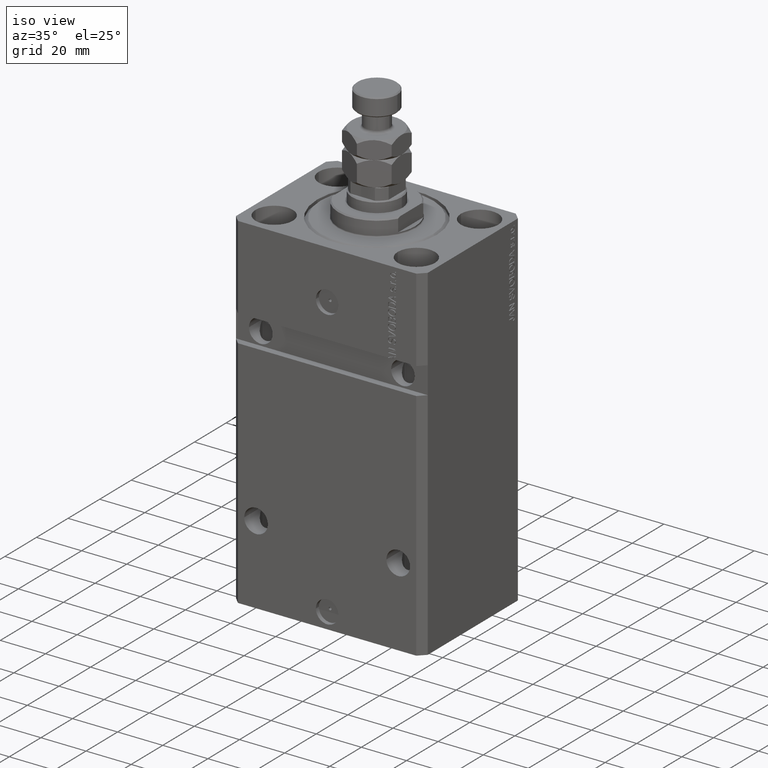
[diagram: clean part render]
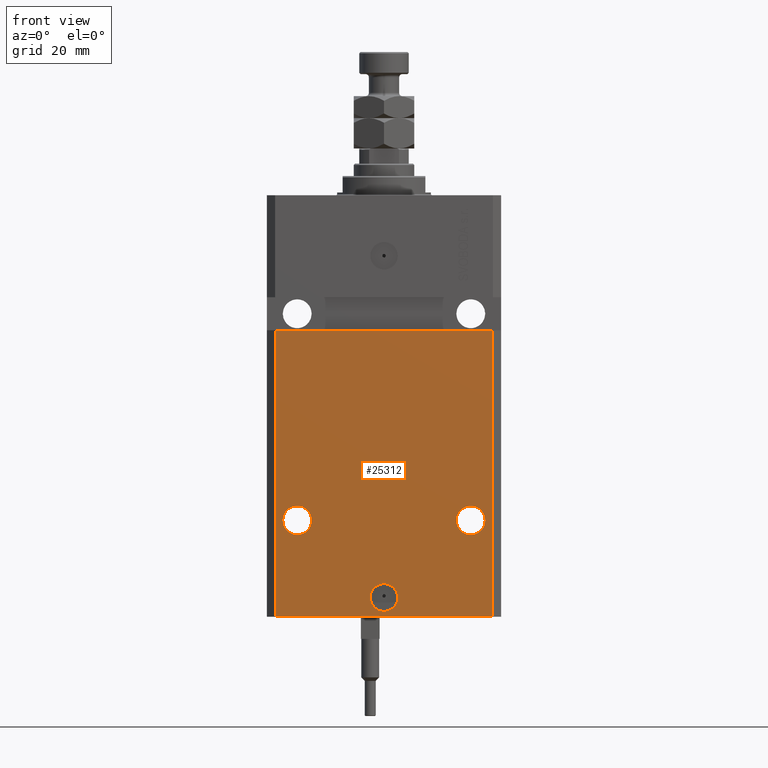
[diagram: tour spotlight — one face highlighted and labeled with its STEP entity id]
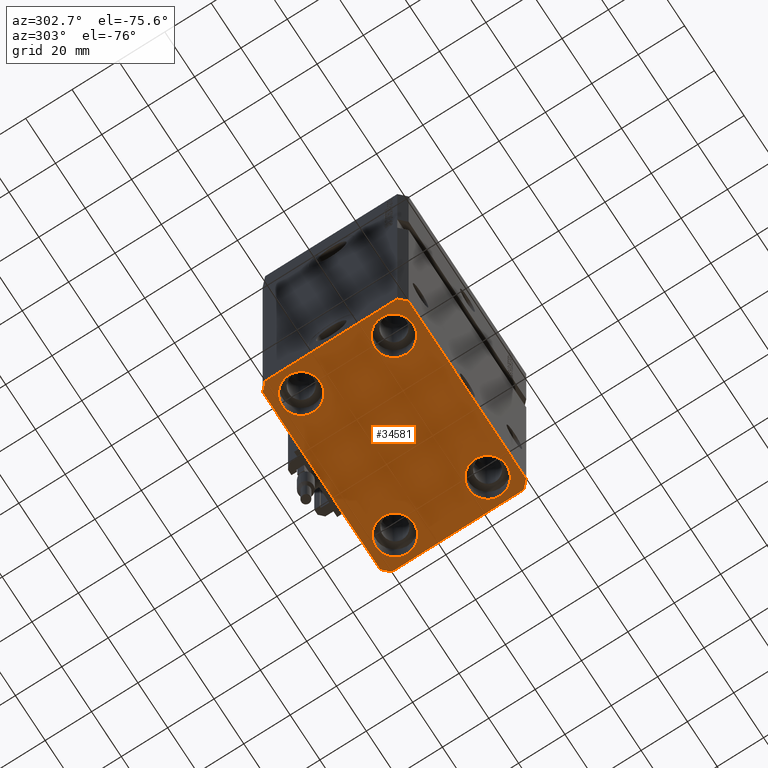
[diagram: tour spotlight — one face highlighted and labeled with its STEP entity id]
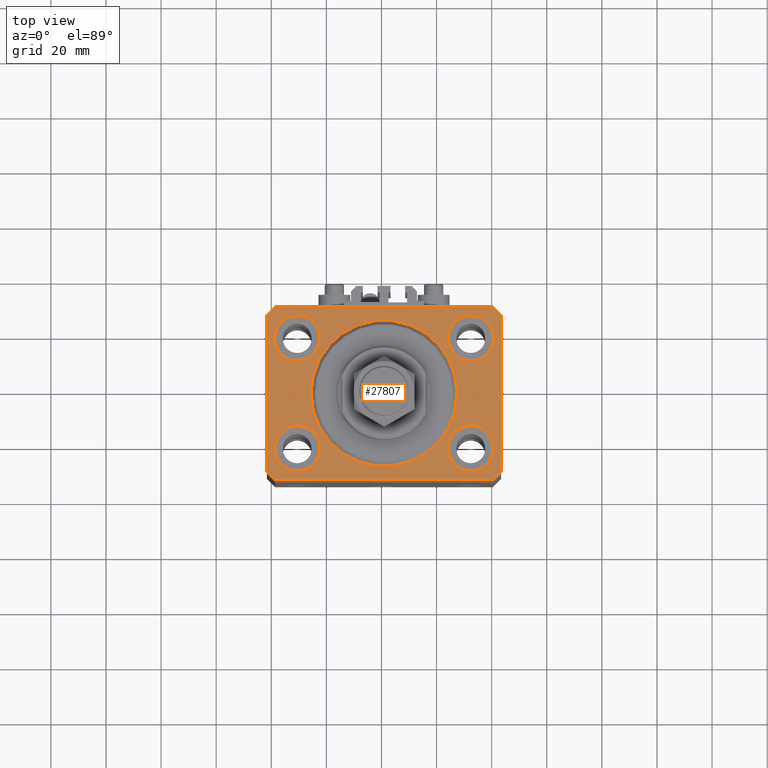
[diagram: tour spotlight — one face highlighted and labeled with its STEP entity id]
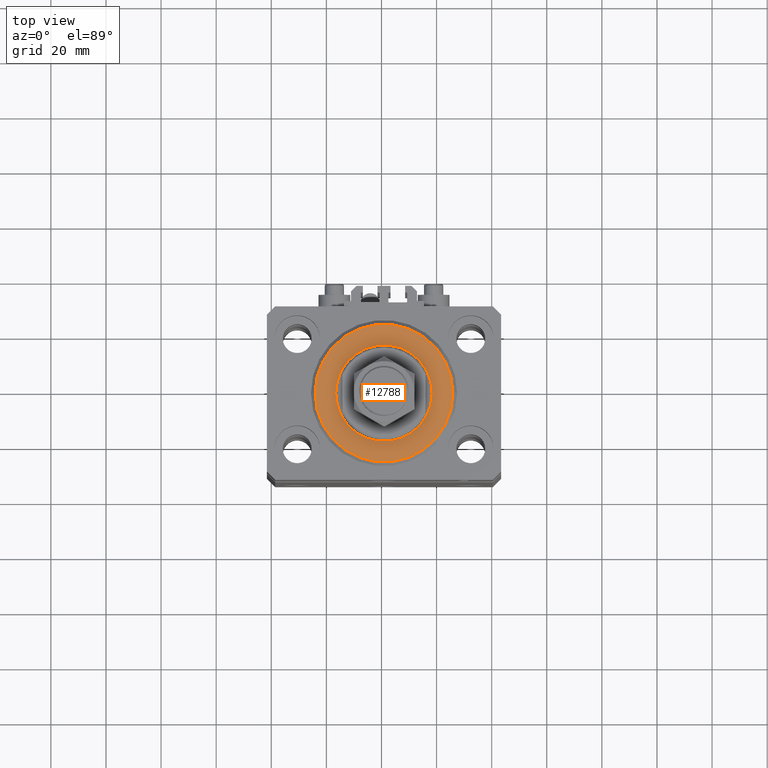
[diagram: tour spotlight — one face highlighted and labeled with its STEP entity id]
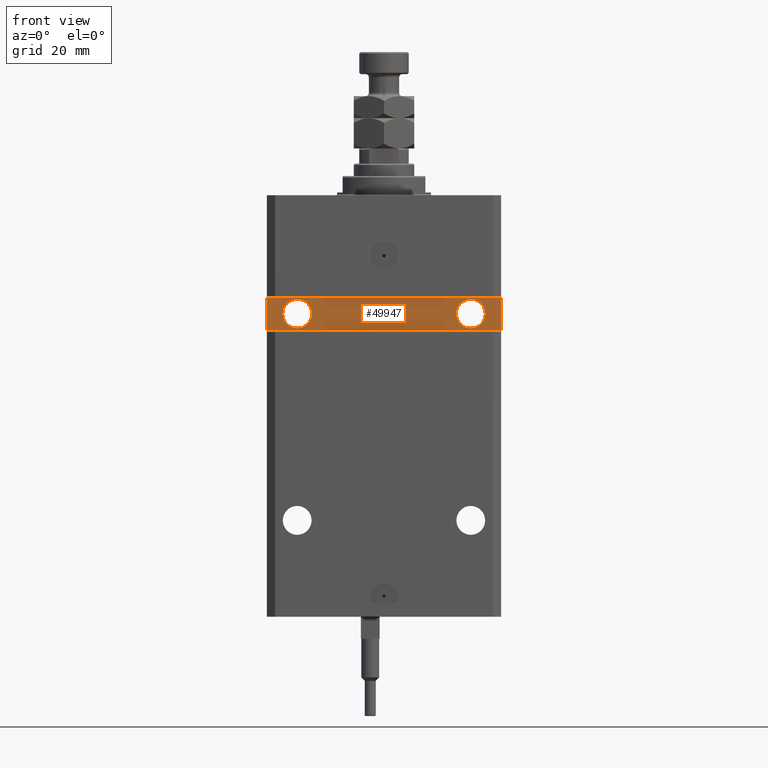
[diagram: tour spotlight — one face highlighted and labeled with its STEP entity id]
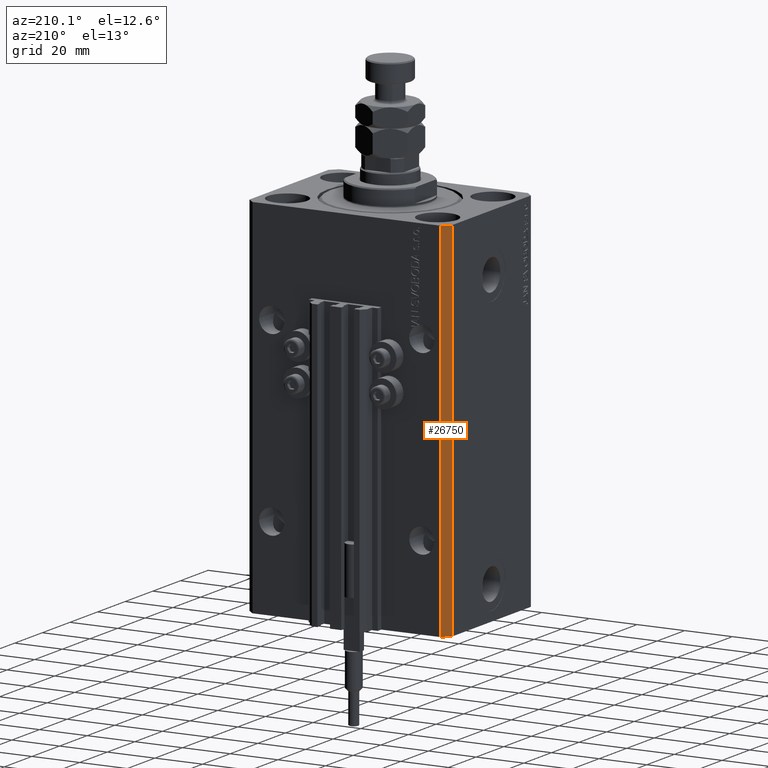
[diagram: tour spotlight — one face highlighted and labeled with its STEP entity id]
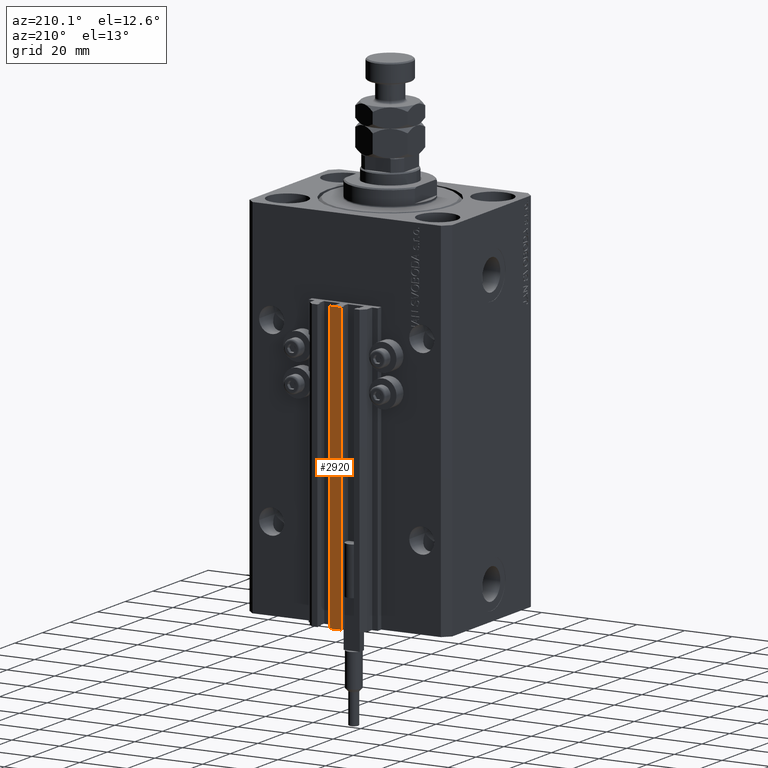
[diagram: tour spotlight — one face highlighted and labeled with its STEP entity id]
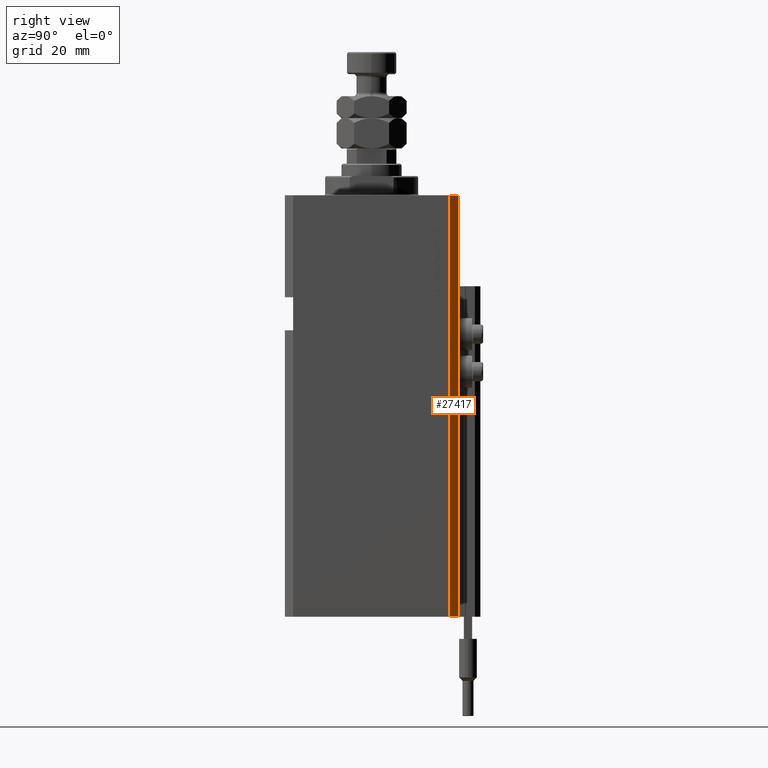
[diagram: tour spotlight — one face highlighted and labeled with its STEP entity id]
A machine part: a face-by-face anatomy tour. The part has 1185 B-rep faces; the first image is the clean iso view, then the 8 largest visible faces are spotlighted one at a time (largest first), each with its STEP entity span.

Face 1 — front view, entity #25312. In plain terms, the highlighted planar face has unit normal (0, -1, 0).
Definition (entity closure, byte-faithful):
#668 = CARTESIAN_POINT ( 'NONE',  ( -39.50000000000000711, -31.50000000000000000, -153.0000000000000000 ) ) ;
#1365 = VERTEX_POINT ( 'NONE', #6952 ) ;
#1867 = CARTESIAN_POINT ( 'NONE',  ( -31.50000000000001421, -31.50000000000000711, -118.0000000000000000 ) ) ;
#2254 = VERTEX_POINT ( 'NONE', #41985 ) ;
#2482 = VERTEX_POINT ( 'NONE', #25350 ) ;
#2498 = ORIENTED_EDGE ( 'NONE', *, *, #46011, .T. ) ;
#3465 = DIRECTION ( 'NONE',  ( 1.176083712526788232E-16, -1.000000000000000000, 0.000000000000000000 ) ) ;
#4275 = LINE ( 'NONE', #11196, #21199 ) ;
#4799 = VECTOR ( 'NONE', #33791, 1000.000000000000000 ) ;
#5234 = EDGE_CURVE ( 'NONE', #25906, #1365, #20740, .T. ) ;
#5345 = EDGE_LOOP ( 'NONE', ( #44148, #11095 ) ) ;
#5417 = AXIS2_PLACEMENT_3D ( 'NONE', #668, #16762, #32360 ) ;
#6046 = EDGE_CURVE ( 'NONE', #1365, #25906, #37946, .T. ) ;
#6206 = CIRCLE ( 'NONE', #12684, 5.249999999999997335 ) ;
#6952 = CARTESIAN_POINT ( 'NONE',  ( 5.000000000000006217, -31.50000000000000000, -146.0000000000000000 ) ) ;
#7233 = DIRECTION ( 'NONE',  ( 1.000000000000000000, 0.000000000000000000, 0.000000000000000000 ) ) ;
#8383 = EDGE_CURVE ( 'NONE', #29437, #22184, #6206, .T. ) ;
#8649 = EDGE_LOOP ( 'NONE', ( #44379, #26628, #35459, #2498 ) ) ;
#9544 = CARTESIAN_POINT ( 'NONE',  ( -39.50000000000000711, -31.50000000000000000, -153.0000000000000000 ) ) ;
#10800 = DIRECTION ( 'NONE',  ( 1.176083712526788232E-16, -1.000000000000000000, 0.000000000000000000 ) ) ;
#11095 = ORIENTED_EDGE ( 'NONE', *, *, #46535, .F. ) ;
#11196 = CARTESIAN_POINT ( 'NONE',  ( -39.50000000000000711, -31.50000000000000000, -153.0000000000000000 ) ) ;
#11695 = DIRECTION ( 'NONE',  ( 1.000000000000000000, 0.000000000000000000, 0.000000000000000000 ) ) ;
#12431 = DIRECTION ( 'NONE',  ( 1.176083712526788232E-16, -1.000000000000000000, 0.000000000000000000 ) ) ;
#12684 = AXIS2_PLACEMENT_3D ( 'NONE', #44118, #12431, #35180 ) ;
#12735 = EDGE_LOOP ( 'NONE', ( #46409, #36702 ) ) ;
#13007 = CIRCLE ( 'NONE', #26877, 5.249999999999997335 ) ;
#14894 = DIRECTION ( 'NONE',  ( 1.176083712526788232E-16, -1.000000000000000000, 0.000000000000000000 ) ) ;
#16263 = PLANE ( 'NONE',  #5417 ) ;
#16762 = DIRECTION ( 'NONE',  ( 0.000000000000000000, -1.000000000000000000, 0.000000000000000000 ) ) ;
#17085 = VERTEX_POINT ( 'NONE', #22143 ) ;
#17168 = DIRECTION ( 'NONE',  ( 1.176083712526788232E-16, -1.000000000000000000, 0.000000000000000000 ) ) ;
#19046 = DIRECTION ( 'NONE',  ( 1.000000000000000000, 0.000000000000000000, 0.000000000000000000 ) ) ;
#19944 = VERTEX_POINT ( 'NONE', #48360 ) ;
#20589 = FACE_BOUND ( 'NONE', #12735, .T. ) ;
#20740 = CIRCLE ( 'NONE', #37077, 5.000000000000006217 ) ;
#21199 = VECTOR ( 'NONE', #11695, 1000.000000000000000 ) ;
#21948 = CIRCLE ( 'NONE', #48063, 5.249999999999997335 ) ;
#22036 = CARTESIAN_POINT ( 'NONE',  ( 39.50000000000000711, -31.50000000000000000, -153.0000000000000000 ) ) ;
#22143 = CARTESIAN_POINT ( 'NONE',  ( -39.50000000000000000, -31.50000000000000711, -48.99999999999999289 ) ) ;
#22148 = ORIENTED_EDGE ( 'NONE', *, *, #31938, .F. ) ;
#22184 = VERTEX_POINT ( 'NONE', #25383 ) ;
#24660 = CARTESIAN_POINT ( 'NONE',  ( -26.25000000000001776, -31.50000000000000711, -118.0000000000000000 ) ) ;
#25312 = ADVANCED_FACE ( 'NONE', ( #20589, #36198, #48215, #40283 ), #16263, .T. ) ;
#25350 = CARTESIAN_POINT ( 'NONE',  ( 36.75000000000001421, -31.49999999999999289, -118.0000000000000000 ) ) ;
#25383 = CARTESIAN_POINT ( 'NONE',  ( -36.75000000000001421, -31.50000000000000711, -118.0000000000000000 ) ) ;
#25546 = CARTESIAN_POINT ( 'NONE',  ( -42.50000000000001421, -31.50000000000000711, -48.99999999999999289 ) ) ;
#25547 = VERTEX_POINT ( 'NONE', #40466 ) ;
#25647 = VERTEX_POINT ( 'NONE', #9544 ) ;
#25701 = AXIS2_PLACEMENT_3D ( 'NONE', #32716, #36821, #37069 ) ;
#25801 = LINE ( 'NONE', #25546, #36533 ) ;
#25906 = VERTEX_POINT ( 'NONE', #34004 ) ;
#26628 = ORIENTED_EDGE ( 'NONE', *, *, #31999, .F. ) ;
#26877 = AXIS2_PLACEMENT_3D ( 'NONE', #38736, #3465, #19046 ) ;
#27250 = ORIENTED_EDGE ( 'NONE', *, *, #8383, .F. ) ;
#28725 = EDGE_CURVE ( 'NONE', #17085, #19944, #25801, .T. ) ;
#29437 = VERTEX_POINT ( 'NONE', #24660 ) ;
#29448 = DIRECTION ( 'NONE',  ( 1.000000000000000000, 0.000000000000000000, 0.000000000000000000 ) ) ;
#30467 = LINE ( 'NONE', #38396, #34202 ) ;
#31938 = EDGE_CURVE ( 'NONE', #22184, #29437, #21948, .T. ) ;
#31999 = EDGE_CURVE ( 'NONE', #25647, #17085, #30467, .T. ) ;
#32360 = DIRECTION ( 'NONE',  ( 0.000000000000000000, -0.000000000000000000, -1.000000000000000000 ) ) ;
#32716 = CARTESIAN_POINT ( 'NONE',  ( 0.000000000000000000, -31.50000000000000000, -146.0000000000000000 ) ) ;
#33055 = EDGE_LOOP ( 'NONE', ( #27250, #22148 ) ) ;
#33791 = DIRECTION ( 'NONE',  ( 0.000000000000000000, 0.000000000000000000, 1.000000000000000000 ) ) ;
#34004 = CARTESIAN_POINT ( 'NONE',  ( -5.000000000000006217, -31.50000000000000000, -146.0000000000000000 ) ) ;
#34202 = VECTOR ( 'NONE', #41980, 1000.000000000000000 ) ;
#35180 = DIRECTION ( 'NONE',  ( -1.000000000000000000, 0.000000000000000000, 0.000000000000000000 ) ) ;
#35396 = EDGE_CURVE ( 'NONE', #2482, #2254, #42355, .T. ) ;
#35459 = ORIENTED_EDGE ( 'NONE', *, *, #36866, .T. ) ;
#36198 = FACE_BOUND ( 'NONE', #5345, .T. ) ;
#36533 = VECTOR ( 'NONE', #37298, 1000.000000000000000 ) ;
#36702 = ORIENTED_EDGE ( 'NONE', *, *, #5234, .F. ) ;
#36821 = DIRECTION ( 'NONE',  ( 1.176083712526788232E-16, -1.000000000000000000, 0.000000000000000000 ) ) ;
#36866 = EDGE_CURVE ( 'NONE', #25647, #25547, #4275, .T. ) ;
#37069 = DIRECTION ( 'NONE',  ( 1.000000000000000000, 0.000000000000000000, 0.000000000000000000 ) ) ;
#37077 = AXIS2_PLACEMENT_3D ( 'NONE', #48113, #17168, #29448 ) ;
#37298 = DIRECTION ( 'NONE',  ( 1.000000000000000000, 1.632680918566406054E-16, 1.632680918566406054E-16 ) ) ;
#37404 = DIRECTION ( 'NONE',  ( -1.000000000000000000, 0.000000000000000000, 0.000000000000000000 ) ) ;
#37946 = CIRCLE ( 'NONE', #25701, 5.000000000000006217 ) ;
#38396 = CARTESIAN_POINT ( 'NONE',  ( -39.50000000000000711, -31.50000000000000000, -153.0000000000000000 ) ) ;
#38736 = CARTESIAN_POINT ( 'NONE',  ( 31.50000000000001421, -31.49999999999999289, -118.0000000000000000 ) ) ;
#39921 = AXIS2_PLACEMENT_3D ( 'NONE', #41518, #14894, #7233 ) ;
#40283 = FACE_OUTER_BOUND ( 'NONE', #8649, .T. ) ;
#40466 = CARTESIAN_POINT ( 'NONE',  ( 39.50000000000000711, -31.50000000000000000, -153.0000000000000000 ) ) ;
#41466 = LINE ( 'NONE', #22036, #4799 ) ;
#41518 = CARTESIAN_POINT ( 'NONE',  ( 31.50000000000001421, -31.49999999999999289, -118.0000000000000000 ) ) ;
#41980 = DIRECTION ( 'NONE',  ( 0.000000000000000000, 0.000000000000000000, 1.000000000000000000 ) ) ;
#41985 = CARTESIAN_POINT ( 'NONE',  ( 26.25000000000001776, -31.49999999999999289, -118.0000000000000000 ) ) ;
#42355 = CIRCLE ( 'NONE', #39921, 5.249999999999997335 ) ;
#44118 = CARTESIAN_POINT ( 'NONE',  ( -31.50000000000001421, -31.50000000000000711, -118.0000000000000000 ) ) ;
#44148 = ORIENTED_EDGE ( 'NONE', *, *, #35396, .F. ) ;
#44379 = ORIENTED_EDGE ( 'NONE', *, *, #28725, .F. ) ;
#46011 = EDGE_CURVE ( 'NONE', #25547, #19944, #41466, .T. ) ;
#46409 = ORIENTED_EDGE ( 'NONE', *, *, #6046, .F. ) ;
#46535 = EDGE_CURVE ( 'NONE', #2254, #2482, #13007, .T. ) ;
#48063 = AXIS2_PLACEMENT_3D ( 'NONE', #1867, #10800, #37404 ) ;
#48113 = CARTESIAN_POINT ( 'NONE',  ( 0.000000000000000000, -31.50000000000000000, -146.0000000000000000 ) ) ;
#48215 = FACE_BOUND ( 'NONE', #33055, .T. ) ;
#48360 = CARTESIAN_POINT ( 'NONE',  ( 39.50000000000000000, -31.49999999999999289, -48.99999999999997868 ) ) ;

Face 2 — auxiliary view, entity #34581. In plain terms, the highlighted planar face has unit normal (0, 0, 1).
Definition (entity closure, byte-faithful):
#3 = EDGE_CURVE ( 'NONE', #35660, #15333, #28863, .T. ) ;
#1058 = FACE_BOUND ( 'NONE', #19553, .T. ) ;
#1095 = DIRECTION ( 'NONE',  ( -1.000000000000000000, 0.000000000000000000, 0.000000000000000000 ) ) ;
#1350 = EDGE_CURVE ( 'NONE', #29618, #19025, #24107, .T. ) ;
#2236 = CIRCLE ( 'NONE', #14483, 8.250000000000000000 ) ;
#2558 = VERTEX_POINT ( 'NONE', #2823 ) ;
#2823 = CARTESIAN_POINT ( 'NONE',  ( -23.25000000000000000, -20.00000000000000000, -153.0000000000000000 ) ) ;
#3235 = CIRCLE ( 'NONE', #32614, 8.249999999999992895 ) ;
#3333 = AXIS2_PLACEMENT_3D ( 'NONE', #16285, #27044, #42622 ) ;
#3607 = LINE ( 'NONE', #12040, #11025 ) ;
#4114 = DIRECTION ( 'NONE',  ( 0.7071067811865471286, -0.7071067811865479058, 0.000000000000000000 ) ) ;
#4275 = LINE ( 'NONE', #11196, #21199 ) ;
#4807 = CARTESIAN_POINT ( 'NONE',  ( -31.50000000000000000, -20.00000000000000000, -153.0000000000000000 ) ) ;
#7063 = DIRECTION ( 'NONE',  ( 0.000000000000000000, -1.000000000000000000, 0.000000000000000000 ) ) ;
#8631 = EDGE_CURVE ( 'NONE', #15333, #35660, #38054, .T. ) ;
#9119 = CARTESIAN_POINT ( 'NONE',  ( 31.50000000000000000, 20.00000000000001066, -153.0000000000000000 ) ) ;
#9180 = ORIENTED_EDGE ( 'NONE', *, *, #47613, .F. ) ;
#9544 = CARTESIAN_POINT ( 'NONE',  ( -39.50000000000000711, -31.50000000000000000, -153.0000000000000000 ) ) ;
#9760 = PLANE ( 'NONE',  #24488 ) ;
#10511 = DIRECTION ( 'NONE',  ( -0.000000000000000000, -0.000000000000000000, 1.000000000000000000 ) ) ;
#10808 = LINE ( 'NONE', #26404, #41982 ) ;
#11025 = VECTOR ( 'NONE', #4114, 1000.000000000000000 ) ;
#11110 = AXIS2_PLACEMENT_3D ( 'NONE', #15340, #49888, #49644 ) ;
#11196 = CARTESIAN_POINT ( 'NONE',  ( -39.50000000000000711, -31.50000000000000000, -153.0000000000000000 ) ) ;
#11294 = ORIENTED_EDGE ( 'NONE', *, *, #37768, .T. ) ;
#11695 = DIRECTION ( 'NONE',  ( 1.000000000000000000, 0.000000000000000000, 0.000000000000000000 ) ) ;
#11858 = EDGE_CURVE ( 'NONE', #34510, #29618, #19154, .T. ) ;
#12040 = CARTESIAN_POINT ( 'NONE',  ( -42.50000000000000000, -28.50000000000000000, -153.0000000000000000 ) ) ;
#12326 = EDGE_CURVE ( 'NONE', #47242, #49871, #37409, .T. ) ;
#12460 = CARTESIAN_POINT ( 'NONE',  ( 42.50000000000000711, -28.50000000000000355, -153.0000000000000000 ) ) ;
#12658 = CARTESIAN_POINT ( 'NONE',  ( 42.50000000000000711, -28.50000000000000355, -153.0000000000000000 ) ) ;
#14332 = ORIENTED_EDGE ( 'NONE', *, *, #50562, .T. ) ;
#14483 = AXIS2_PLACEMENT_3D ( 'NONE', #45532, #10511, #50350 ) ;
#14750 = CIRCLE ( 'NONE', #3333, 8.250000000000000000 ) ;
#14818 = CARTESIAN_POINT ( 'NONE',  ( -23.25000000000000000, 20.00000000000000000, -153.0000000000000000 ) ) ;
#15070 = DIRECTION ( 'NONE',  ( -0.7071067811865356934, 0.7071067811865594521, 0.000000000000000000 ) ) ;
#15130 = CARTESIAN_POINT ( 'NONE',  ( 42.50000000000051870, 28.49999999999995381, -153.0000000000000000 ) ) ;
#15329 = CARTESIAN_POINT ( 'NONE',  ( 23.25000000000000355, -20.00000000000000000, -153.0000000000000000 ) ) ;
#15333 = VERTEX_POINT ( 'NONE', #24186 ) ;
#15340 = CARTESIAN_POINT ( 'NONE',  ( 31.50000000000000000, -20.00000000000000000, -153.0000000000000000 ) ) ;
#15534 = CARTESIAN_POINT ( 'NONE',  ( 39.74999999999999289, 20.00000000000001066, -153.0000000000000000 ) ) ;
#15623 = ORIENTED_EDGE ( 'NONE', *, *, #8631, .T. ) ;
#15820 = ORIENTED_EDGE ( 'NONE', *, *, #47506, .F. ) ;
#16285 = CARTESIAN_POINT ( 'NONE',  ( -31.50000000000000000, 20.00000000000000000, -153.0000000000000000 ) ) ;
#16303 = DIRECTION ( 'NONE',  ( -0.000000000000000000, -0.000000000000000000, 1.000000000000000000 ) ) ;
#16524 = DIRECTION ( 'NONE',  ( -0.000000000000000000, -0.000000000000000000, 1.000000000000000000 ) ) ;
#16632 = CARTESIAN_POINT ( 'NONE',  ( -39.50000000000000711, 31.50000000000000000, -153.0000000000000000 ) ) ;
#16644 = LINE ( 'NONE', #36338, #43541 ) ;
#16645 = CARTESIAN_POINT ( 'NONE',  ( 0.000000000000000000, 0.000000000000000000, -153.0000000000000000 ) ) ;
#16693 = EDGE_CURVE ( 'NONE', #25547, #40592, #16644, .T. ) ;
#16915 = VECTOR ( 'NONE', #15070, 1000.000000000000114 ) ;
#17275 = CARTESIAN_POINT ( 'NONE',  ( -31.50000000000000000, 20.00000000000000000, -153.0000000000000000 ) ) ;
#17637 = CARTESIAN_POINT ( 'NONE',  ( -39.75000000000000000, 20.00000000000000000, -153.0000000000000000 ) ) ;
#18141 = ORIENTED_EDGE ( 'NONE', *, *, #28606, .T. ) ;
#18774 = EDGE_CURVE ( 'NONE', #19025, #38562, #10808, .T. ) ;
#19025 = VERTEX_POINT ( 'NONE', #16632 ) ;
#19154 = LINE ( 'NONE', #46269, #16915 ) ;
#19303 = CARTESIAN_POINT ( 'NONE',  ( -39.75000000000000000, -20.00000000000000000, -153.0000000000000000 ) ) ;
#19553 = EDGE_LOOP ( 'NONE', ( #30975, #14332 ) ) ;
#19670 = ORIENTED_EDGE ( 'NONE', *, *, #11858, .F. ) ;
#20224 = FACE_BOUND ( 'NONE', #40111, .T. ) ;
#20345 = DIRECTION ( 'NONE',  ( -0.000000000000000000, -0.000000000000000000, 1.000000000000000000 ) ) ;
#21199 = VECTOR ( 'NONE', #11695, 1000.000000000000000 ) ;
#21249 = FACE_BOUND ( 'NONE', #44461, .T. ) ;
#23746 = EDGE_LOOP ( 'NONE', ( #47192, #15623 ) ) ;
#23750 = EDGE_CURVE ( 'NONE', #31401, #25647, #3607, .T. ) ;
#24107 = LINE ( 'NONE', #32535, #37080 ) ;
#24186 = CARTESIAN_POINT ( 'NONE',  ( 39.74999999999999289, -20.00000000000000000, -153.0000000000000000 ) ) ;
#24488 = AXIS2_PLACEMENT_3D ( 'NONE', #16645, #47595, #28924 ) ;
#25547 = VERTEX_POINT ( 'NONE', #40466 ) ;
#25647 = VERTEX_POINT ( 'NONE', #9544 ) ;
#25697 = DIRECTION ( 'NONE',  ( -0.000000000000000000, -0.000000000000000000, 1.000000000000000000 ) ) ;
#25859 = ORIENTED_EDGE ( 'NONE', *, *, #16693, .F. ) ;
#26150 = AXIS2_PLACEMENT_3D ( 'NONE', #4807, #16303, #31898 ) ;
#26404 = CARTESIAN_POINT ( 'NONE',  ( -39.50000000000000711, 31.50000000000000000, -153.0000000000000000 ) ) ;
#26665 = CARTESIAN_POINT ( 'NONE',  ( 23.25000000000000355, 20.00000000000001066, -153.0000000000000000 ) ) ;
#26947 = ORIENTED_EDGE ( 'NONE', *, *, #23750, .F. ) ;
#27044 = DIRECTION ( 'NONE',  ( -0.000000000000000000, -0.000000000000000000, 1.000000000000000000 ) ) ;
#27510 = CIRCLE ( 'NONE', #50358, 8.250000000000000000 ) ;
#28061 = EDGE_CURVE ( 'NONE', #31129, #33407, #27510, .T. ) ;
#28258 = DIRECTION ( 'NONE',  ( 8.886653596232072440E-15, 1.000000000000000000, 0.000000000000000000 ) ) ;
#28606 = EDGE_CURVE ( 'NONE', #42422, #2558, #2236, .T. ) ;
#28787 = DIRECTION ( 'NONE',  ( 1.000000000000000000, 0.000000000000000000, 0.000000000000000000 ) ) ;
#28863 = CIRCLE ( 'NONE', #30499, 8.249999999999992895 ) ;
#28924 = DIRECTION ( 'NONE',  ( 1.000000000000000000, 0.000000000000000000, -0.000000000000000000 ) ) ;
#29337 = CARTESIAN_POINT ( 'NONE',  ( -42.50000000000000000, 28.50000000000000000, -153.0000000000000000 ) ) ;
#29618 = VERTEX_POINT ( 'NONE', #42996 ) ;
#30204 = DIRECTION ( 'NONE',  ( 1.000000000000000000, 0.000000000000000000, 0.000000000000000000 ) ) ;
#30272 = DIRECTION ( 'NONE',  ( 1.000000000000000000, 0.000000000000000000, 0.000000000000000000 ) ) ;
#30445 = CARTESIAN_POINT ( 'NONE',  ( 31.50000000000000000, 20.00000000000001066, -153.0000000000000000 ) ) ;
#30499 = AXIS2_PLACEMENT_3D ( 'NONE', #49706, #25697, #30272 ) ;
#30975 = ORIENTED_EDGE ( 'NONE', *, *, #28061, .T. ) ;
#30997 = VECTOR ( 'NONE', #7063, 1000.000000000000000 ) ;
#31129 = VERTEX_POINT ( 'NONE', #17637 ) ;
#31401 = VERTEX_POINT ( 'NONE', #42894 ) ;
#31898 = DIRECTION ( 'NONE',  ( 1.000000000000000000, 0.000000000000000000, 0.000000000000000000 ) ) ;
#32121 = DIRECTION ( 'NONE',  ( 1.000000000000000000, 0.000000000000000000, 0.000000000000000000 ) ) ;
#32535 = CARTESIAN_POINT ( 'NONE',  ( 39.50000000000056843, 31.50000000000000000, -153.0000000000000000 ) ) ;
#32614 = AXIS2_PLACEMENT_3D ( 'NONE', #30445, #49390, #30204 ) ;
#33407 = VERTEX_POINT ( 'NONE', #14818 ) ;
#34076 = DIRECTION ( 'NONE',  ( -0.7071067811865471286, -0.7071067811865479058, 0.000000000000000000 ) ) ;
#34510 = VERTEX_POINT ( 'NONE', #15130 ) ;
#34581 = ADVANCED_FACE ( 'NONE', ( #21249, #36596, #20224, #1058, #36087 ), #9760, .F. ) ;
#34902 = ORIENTED_EDGE ( 'NONE', *, *, #1350, .F. ) ;
#35660 = VERTEX_POINT ( 'NONE', #15329 ) ;
#36020 = EDGE_LOOP ( 'NONE', ( #34902, #19670, #9180, #25859, #43706, #26947, #15820, #38051 ) ) ;
#36087 = FACE_OUTER_BOUND ( 'NONE', #36020, .T. ) ;
#36245 = CARTESIAN_POINT ( 'NONE',  ( -42.50000000000000000, 28.50000000000000000, -153.0000000000000000 ) ) ;
#36338 = CARTESIAN_POINT ( 'NONE',  ( 39.50000000000000711, -31.50000000000000000, -153.0000000000000000 ) ) ;
#36391 = EDGE_CURVE ( 'NONE', #49871, #47242, #3235, .T. ) ;
#36595 = DIRECTION ( 'NONE',  ( 0.7071067811865483499, 0.7071067811865466846, 0.000000000000000000 ) ) ;
#36596 = FACE_BOUND ( 'NONE', #23746, .T. ) ;
#36866 = EDGE_CURVE ( 'NONE', #25647, #25547, #4275, .T. ) ;
#37080 = VECTOR ( 'NONE', #1095, 1000.000000000000000 ) ;
#37409 = CIRCLE ( 'NONE', #47164, 8.249999999999992895 ) ;
#37768 = EDGE_CURVE ( 'NONE', #2558, #42422, #48178, .T. ) ;
#38051 = ORIENTED_EDGE ( 'NONE', *, *, #18774, .F. ) ;
#38054 = CIRCLE ( 'NONE', #11110, 8.249999999999992895 ) ;
#38562 = VERTEX_POINT ( 'NONE', #36245 ) ;
#40111 = EDGE_LOOP ( 'NONE', ( #47326, #48290 ) ) ;
#40466 = CARTESIAN_POINT ( 'NONE',  ( 39.50000000000000711, -31.50000000000000000, -153.0000000000000000 ) ) ;
#40592 = VERTEX_POINT ( 'NONE', #12460 ) ;
#40780 = VECTOR ( 'NONE', #28258, 1000.000000000000000 ) ;
#41982 = VECTOR ( 'NONE', #34076, 1000.000000000000000 ) ;
#42422 = VERTEX_POINT ( 'NONE', #19303 ) ;
#42622 = DIRECTION ( 'NONE',  ( 1.000000000000000000, 0.000000000000000000, 0.000000000000000000 ) ) ;
#42894 = CARTESIAN_POINT ( 'NONE',  ( -42.50000000000000000, -28.50000000000000000, -153.0000000000000000 ) ) ;
#42996 = CARTESIAN_POINT ( 'NONE',  ( 39.50000000000056843, 31.50000000000000000, -153.0000000000000000 ) ) ;
#43541 = VECTOR ( 'NONE', #36595, 1000.000000000000000 ) ;
#43706 = ORIENTED_EDGE ( 'NONE', *, *, #36866, .F. ) ;
#44347 = LINE ( 'NONE', #12658, #40780 ) ;
#44461 = EDGE_LOOP ( 'NONE', ( #18141, #11294 ) ) ;
#45532 = CARTESIAN_POINT ( 'NONE',  ( -31.50000000000000000, -20.00000000000000000, -153.0000000000000000 ) ) ;
#46269 = CARTESIAN_POINT ( 'NONE',  ( 42.50000000000051870, 28.49999999999995381, -153.0000000000000000 ) ) ;
#47164 = AXIS2_PLACEMENT_3D ( 'NONE', #9119, #16524, #32121 ) ;
#47192 = ORIENTED_EDGE ( 'NONE', *, *, #3, .T. ) ;
#47242 = VERTEX_POINT ( 'NONE', #15534 ) ;
#47326 = ORIENTED_EDGE ( 'NONE', *, *, #36391, .T. ) ;
#47506 = EDGE_CURVE ( 'NONE', #38562, #31401, #49767, .T. ) ;
#47595 = DIRECTION ( 'NONE',  ( 0.000000000000000000, 0.000000000000000000, 1.000000000000000000 ) ) ;
#47613 = EDGE_CURVE ( 'NONE', #40592, #34510, #44347, .T. ) ;
#48178 = CIRCLE ( 'NONE', #26150, 8.250000000000000000 ) ;
#48290 = ORIENTED_EDGE ( 'NONE', *, *, #12326, .T. ) ;
#49390 = DIRECTION ( 'NONE',  ( -0.000000000000000000, -0.000000000000000000, 1.000000000000000000 ) ) ;
#49644 = DIRECTION ( 'NONE',  ( 1.000000000000000000, 0.000000000000000000, 0.000000000000000000 ) ) ;
#49706 = CARTESIAN_POINT ( 'NONE',  ( 31.50000000000000000, -20.00000000000000000, -153.0000000000000000 ) ) ;
#49767 = LINE ( 'NONE', #29337, #30997 ) ;
#49871 = VERTEX_POINT ( 'NONE', #26665 ) ;
#49888 = DIRECTION ( 'NONE',  ( -0.000000000000000000, -0.000000000000000000, 1.000000000000000000 ) ) ;
#50350 = DIRECTION ( 'NONE',  ( 1.000000000000000000, 0.000000000000000000, 0.000000000000000000 ) ) ;
#50358 = AXIS2_PLACEMENT_3D ( 'NONE', #17275, #20345, #28787 ) ;
#50562 = EDGE_CURVE ( 'NONE', #33407, #31129, #14750, .T. ) ;

Face 3 — top view, entity #27807. In plain terms, the highlighted planar face has unit normal (0, 0, 1).
Definition (entity closure, byte-faithful):
#129 = EDGE_CURVE ( 'NONE', #11140, #40747, #30510, .T. ) ;
#144 = DIRECTION ( 'NONE',  ( 0.000000000000000000, 0.000000000000000000, 1.000000000000000000 ) ) ;
#256 = CARTESIAN_POINT ( 'NONE',  ( 31.50000000000000000, -20.00000000000000000, 0.000000000000000000 ) ) ;
#347 = DIRECTION ( 'NONE',  ( 1.000000000000000000, 0.000000000000000000, 0.000000000000000000 ) ) ;
#406 = CARTESIAN_POINT ( 'NONE',  ( -42.50000000000000000, 28.50000000000000000, 0.000000000000000000 ) ) ;
#465 = CARTESIAN_POINT ( 'NONE',  ( -42.50000000000000000, -28.50000000000000000, 0.000000000000000000 ) ) ;
#601 = EDGE_CURVE ( 'NONE', #21985, #17912, #45225, .T. ) ;
#664 = LINE ( 'NONE', #406, #19053 ) ;
#1306 = CIRCLE ( 'NONE', #10300, 26.50000000000000355 ) ;
#1328 = DIRECTION ( 'NONE',  ( 1.000000000000000000, 0.000000000000000000, 0.000000000000000000 ) ) ;
#2002 = CIRCLE ( 'NONE', #33833, 8.250000000000000000 ) ;
#2404 = DIRECTION ( 'NONE',  ( -0.7071067811865356934, 0.7071067811865594521, 0.000000000000000000 ) ) ;
#3079 = EDGE_CURVE ( 'NONE', #42564, #17022, #13344, .T. ) ;
#3380 = EDGE_CURVE ( 'NONE', #33445, #11140, #41680, .T. ) ;
#3474 = EDGE_CURVE ( 'NONE', #19043, #33445, #31912, .T. ) ;
#3570 = EDGE_LOOP ( 'NONE', ( #17756, #5764, #35525, #37855, #35307, #42647, #29167, #16404 ) ) ;
#3813 = EDGE_CURVE ( 'NONE', #18284, #19043, #664, .T. ) ;
#4167 = EDGE_CURVE ( 'NONE', #17022, #42564, #30497, .T. ) ;
#5107 = EDGE_CURVE ( 'NONE', #6123, #19754, #48936, .T. ) ;
#5433 = EDGE_CURVE ( 'NONE', #20822, #6105, #2002, .T. ) ;
#5764 = ORIENTED_EDGE ( 'NONE', *, *, #35802, .T. ) ;
#6105 = VERTEX_POINT ( 'NONE', #41902 ) ;
#6123 = VERTEX_POINT ( 'NONE', #45739 ) ;
#6338 = EDGE_LOOP ( 'NONE', ( #9753, #36844 ) ) ;
#6475 = AXIS2_PLACEMENT_3D ( 'NONE', #7848, #46467, #11445 ) ;
#6923 = DIRECTION ( 'NONE',  ( 0.000000000000000000, 0.000000000000000000, 1.000000000000000000 ) ) ;
#7592 = CARTESIAN_POINT ( 'NONE',  ( 0.000000000000000000, 0.000000000000000000, 0.000000000000000000 ) ) ;
#7848 = CARTESIAN_POINT ( 'NONE',  ( 31.50000000000000000, -20.00000000000000000, 0.000000000000000000 ) ) ;
#8293 = DIRECTION ( 'NONE',  ( 0.000000000000000000, 0.000000000000000000, 1.000000000000000000 ) ) ;
#9199 = CARTESIAN_POINT ( 'NONE',  ( 42.50000000000000711, -28.50000000000000355, 0.000000000000000000 ) ) ;
#9379 = EDGE_CURVE ( 'NONE', #20567, #26199, #1306, .T. ) ;
#9753 = ORIENTED_EDGE ( 'NONE', *, *, #3079, .F. ) ;
#10006 = CARTESIAN_POINT ( 'NONE',  ( -42.50000000000000000, -28.50000000000000000, 0.000000000000000000 ) ) ;
#10300 = AXIS2_PLACEMENT_3D ( 'NONE', #31574, #38991, #47679 ) ;
#10362 = ORIENTED_EDGE ( 'NONE', *, *, #40756, .F. ) ;
#10521 = DIRECTION ( 'NONE',  ( 1.000000000000000000, 0.000000000000000000, 0.000000000000000000 ) ) ;
#10939 = VECTOR ( 'NONE', #31657, 1000.000000000000000 ) ;
#10963 = CARTESIAN_POINT ( 'NONE',  ( 39.50000000000056843, 31.50000000000000000, 0.000000000000000000 ) ) ;
#11140 = VERTEX_POINT ( 'NONE', #28771 ) ;
#11189 = CARTESIAN_POINT ( 'NONE',  ( -39.50000000000000711, 31.50000000000000000, 0.000000000000000000 ) ) ;
#11252 = CARTESIAN_POINT ( 'NONE',  ( -31.50000000000000000, 20.00000000000000000, 0.000000000000000000 ) ) ;
#11445 = DIRECTION ( 'NONE',  ( 1.000000000000000000, 0.000000000000000000, 0.000000000000000000 ) ) ;
#13242 = EDGE_CURVE ( 'NONE', #19754, #50430, #13980, .T. ) ;
#13344 = CIRCLE ( 'NONE', #45184, 8.250000000000000000 ) ;
#13466 = DIRECTION ( 'NONE',  ( 1.000000000000000000, 0.000000000000000000, 0.000000000000000000 ) ) ;
#13727 = CARTESIAN_POINT ( 'NONE',  ( 42.50000000000000711, -28.50000000000000355, 0.000000000000000000 ) ) ;
#13928 = AXIS2_PLACEMENT_3D ( 'NONE', #20231, #16408, #1328 ) ;
#13980 = LINE ( 'NONE', #29063, #39964 ) ;
#14188 = AXIS2_PLACEMENT_3D ( 'NONE', #27712, #40221, #347 ) ;
#14524 = PLANE ( 'NONE',  #47917 ) ;
#15262 = FACE_BOUND ( 'NONE', #49355, .T. ) ;
#15290 = CARTESIAN_POINT ( 'NONE',  ( 23.25000000000000355, -20.00000000000000000, 0.000000000000000000 ) ) ;
#15906 = CARTESIAN_POINT ( 'NONE',  ( 39.50000000000000711, -31.50000000000000000, 0.000000000000000000 ) ) ;
#16356 = DIRECTION ( 'NONE',  ( 8.886653596232072440E-15, 1.000000000000000000, 0.000000000000000000 ) ) ;
#16404 = ORIENTED_EDGE ( 'NONE', *, *, #5107, .T. ) ;
#16408 = DIRECTION ( 'NONE',  ( 0.000000000000000000, 0.000000000000000000, 1.000000000000000000 ) ) ;
#16421 = DIRECTION ( 'NONE',  ( 1.000000000000000000, 0.000000000000000000, 0.000000000000000000 ) ) ;
#16447 = CARTESIAN_POINT ( 'NONE',  ( -26.50000000000000355, 3.245314017740486554E-15, 0.000000000000000000 ) ) ;
#16777 = CARTESIAN_POINT ( 'NONE',  ( 26.50000000000000355, 0.000000000000000000, 0.000000000000000000 ) ) ;
#17004 = DIRECTION ( 'NONE',  ( 1.000000000000000000, 0.000000000000000000, 0.000000000000000000 ) ) ;
#17022 = VERTEX_POINT ( 'NONE', #30799 ) ;
#17154 = EDGE_CURVE ( 'NONE', #17841, #21141, #26408, .T. ) ;
#17554 = CARTESIAN_POINT ( 'NONE',  ( -31.50000000000000000, 20.00000000000000000, 0.000000000000000000 ) ) ;
#17756 = ORIENTED_EDGE ( 'NONE', *, *, #13242, .T. ) ;
#17841 = VERTEX_POINT ( 'NONE', #18876 ) ;
#17912 = VERTEX_POINT ( 'NONE', #15290 ) ;
#18284 = VERTEX_POINT ( 'NONE', #47188 ) ;
#18330 = ORIENTED_EDGE ( 'NONE', *, *, #5433, .F. ) ;
#18876 = CARTESIAN_POINT ( 'NONE',  ( 23.25000000000000355, 20.00000000000001066, 0.000000000000000000 ) ) ;
#19043 = VERTEX_POINT ( 'NONE', #10006 ) ;
#19053 = VECTOR ( 'NONE', #32104, 1000.000000000000000 ) ;
#19493 = VECTOR ( 'NONE', #25305, 1000.000000000000000 ) ;
#19754 = VERTEX_POINT ( 'NONE', #10963 ) ;
#19890 = ORIENTED_EDGE ( 'NONE', *, *, #601, .F. ) ;
#20231 = CARTESIAN_POINT ( 'NONE',  ( 31.50000000000000000, 20.00000000000001066, 0.000000000000000000 ) ) ;
#20518 = ORIENTED_EDGE ( 'NONE', *, *, #41869, .F. ) ;
#20567 = VERTEX_POINT ( 'NONE', #16777 ) ;
#20822 = VERTEX_POINT ( 'NONE', #35652 ) ;
#21141 = VERTEX_POINT ( 'NONE', #35334 ) ;
#21192 = CARTESIAN_POINT ( 'NONE',  ( -39.50000000000000711, 31.50000000000000000, 0.000000000000000000 ) ) ;
#21231 = ORIENTED_EDGE ( 'NONE', *, *, #35984, .F. ) ;
#21232 = ORIENTED_EDGE ( 'NONE', *, *, #50009, .F. ) ;
#21985 = VERTEX_POINT ( 'NONE', #31505 ) ;
#22697 = FACE_BOUND ( 'NONE', #6338, .T. ) ;
#23443 = FACE_BOUND ( 'NONE', #23785, .T. ) ;
#23525 = VECTOR ( 'NONE', #16356, 1000.000000000000000 ) ;
#23785 = EDGE_LOOP ( 'NONE', ( #21232, #27308 ) ) ;
#24034 = VECTOR ( 'NONE', #2404, 1000.000000000000114 ) ;
#25305 = DIRECTION ( 'NONE',  ( -0.7071067811865471286, -0.7071067811865479058, 0.000000000000000000 ) ) ;
#25591 = CARTESIAN_POINT ( 'NONE',  ( -39.50000000000000711, -31.50000000000000000, 0.000000000000000000 ) ) ;
#26199 = VERTEX_POINT ( 'NONE', #16447 ) ;
#26408 = CIRCLE ( 'NONE', #49288, 8.249999999999992895 ) ;
#26876 = DIRECTION ( 'NONE',  ( 0.000000000000000000, 0.000000000000000000, 1.000000000000000000 ) ) ;
#27308 = ORIENTED_EDGE ( 'NONE', *, *, #17154, .F. ) ;
#27712 = CARTESIAN_POINT ( 'NONE',  ( -31.50000000000000000, -20.00000000000000000, 0.000000000000000000 ) ) ;
#27807 = ADVANCED_FACE ( 'NONE', ( #22697, #31122, #23443, #15262, #45963, #39037 ), #14524, .T. ) ;
#28771 = CARTESIAN_POINT ( 'NONE',  ( 39.50000000000000711, -31.50000000000000000, 0.000000000000000000 ) ) ;
#29063 = CARTESIAN_POINT ( 'NONE',  ( 39.50000000000056843, 31.50000000000000000, 0.000000000000000000 ) ) ;
#29167 = ORIENTED_EDGE ( 'NONE', *, *, #31006, .T. ) ;
#29326 = DIRECTION ( 'NONE',  ( -1.000000000000000000, 0.000000000000000000, 0.000000000000000000 ) ) ;
#29774 = VECTOR ( 'NONE', #48850, 1000.000000000000000 ) ;
#30145 = CIRCLE ( 'NONE', #6475, 8.249999999999992895 ) ;
#30497 = CIRCLE ( 'NONE', #14188, 8.250000000000000000 ) ;
#30510 = LINE ( 'NONE', #15906, #32134 ) ;
#30799 = CARTESIAN_POINT ( 'NONE',  ( -39.75000000000000000, -20.00000000000000000, 0.000000000000000000 ) ) ;
#30868 = DIRECTION ( 'NONE',  ( 0.000000000000000000, 0.000000000000000000, 1.000000000000000000 ) ) ;
#31006 = EDGE_CURVE ( 'NONE', #40747, #6123, #44216, .T. ) ;
#31122 = FACE_BOUND ( 'NONE', #37617, .T. ) ;
#31505 = CARTESIAN_POINT ( 'NONE',  ( 39.74999999999999289, -20.00000000000000000, 0.000000000000000000 ) ) ;
#31574 = CARTESIAN_POINT ( 'NONE',  ( 0.000000000000000000, 0.000000000000000000, 0.000000000000000000 ) ) ;
#31657 = DIRECTION ( 'NONE',  ( 0.7071067811865471286, -0.7071067811865479058, 0.000000000000000000 ) ) ;
#31912 = LINE ( 'NONE', #465, #10939 ) ;
#31943 = LINE ( 'NONE', #21192, #19493 ) ;
#32104 = DIRECTION ( 'NONE',  ( 0.000000000000000000, -1.000000000000000000, 0.000000000000000000 ) ) ;
#32134 = VECTOR ( 'NONE', #34839, 1000.000000000000000 ) ;
#33353 = AXIS2_PLACEMENT_3D ( 'NONE', #35344, #47367, #16421 ) ;
#33445 = VERTEX_POINT ( 'NONE', #34999 ) ;
#33833 = AXIS2_PLACEMENT_3D ( 'NONE', #11252, #6923, #10521 ) ;
#34839 = DIRECTION ( 'NONE',  ( 0.7071067811865483499, 0.7071067811865466846, 0.000000000000000000 ) ) ;
#34999 = CARTESIAN_POINT ( 'NONE',  ( -39.50000000000000711, -31.50000000000000000, 0.000000000000000000 ) ) ;
#35138 = CARTESIAN_POINT ( 'NONE',  ( 31.50000000000000000, 20.00000000000001066, 0.000000000000000000 ) ) ;
#35172 = CARTESIAN_POINT ( 'NONE',  ( -31.50000000000000000, -20.00000000000000000, 0.000000000000000000 ) ) ;
#35307 = ORIENTED_EDGE ( 'NONE', *, *, #3380, .T. ) ;
#35334 = CARTESIAN_POINT ( 'NONE',  ( 39.74999999999999289, 20.00000000000001066, 0.000000000000000000 ) ) ;
#35344 = CARTESIAN_POINT ( 'NONE',  ( 0.000000000000000000, 0.000000000000000000, 0.000000000000000000 ) ) ;
#35525 = ORIENTED_EDGE ( 'NONE', *, *, #3813, .T. ) ;
#35652 = CARTESIAN_POINT ( 'NONE',  ( -23.25000000000000000, 20.00000000000000000, 0.000000000000000000 ) ) ;
#35802 = EDGE_CURVE ( 'NONE', #50430, #18284, #31943, .T. ) ;
#35984 = EDGE_CURVE ( 'NONE', #17912, #21985, #30145, .T. ) ;
#36844 = ORIENTED_EDGE ( 'NONE', *, *, #4167, .F. ) ;
#37617 = EDGE_LOOP ( 'NONE', ( #19890, #21231 ) ) ;
#37855 = ORIENTED_EDGE ( 'NONE', *, *, #3474, .T. ) ;
#38195 = CIRCLE ( 'NONE', #50438, 8.250000000000000000 ) ;
#38294 = DIRECTION ( 'NONE',  ( 1.000000000000000000, 0.000000000000000000, -0.000000000000000000 ) ) ;
#38991 = DIRECTION ( 'NONE',  ( 0.000000000000000000, 0.000000000000000000, 1.000000000000000000 ) ) ;
#39037 = FACE_OUTER_BOUND ( 'NONE', #3570, .T. ) ;
#39964 = VECTOR ( 'NONE', #29326, 1000.000000000000000 ) ;
#40046 = CIRCLE ( 'NONE', #13928, 8.249999999999992895 ) ;
#40221 = DIRECTION ( 'NONE',  ( 0.000000000000000000, 0.000000000000000000, 1.000000000000000000 ) ) ;
#40747 = VERTEX_POINT ( 'NONE', #13727 ) ;
#40756 = EDGE_CURVE ( 'NONE', #6105, #20822, #38195, .T. ) ;
#41680 = LINE ( 'NONE', #25591, #29774 ) ;
#41869 = EDGE_CURVE ( 'NONE', #26199, #20567, #48051, .T. ) ;
#41902 = CARTESIAN_POINT ( 'NONE',  ( -39.75000000000000000, 20.00000000000000000, 0.000000000000000000 ) ) ;
#42399 = EDGE_LOOP ( 'NONE', ( #50496, #20518 ) ) ;
#42460 = DIRECTION ( 'NONE',  ( 1.000000000000000000, 0.000000000000000000, 0.000000000000000000 ) ) ;
#42564 = VERTEX_POINT ( 'NONE', #49051 ) ;
#42647 = ORIENTED_EDGE ( 'NONE', *, *, #129, .T. ) ;
#44216 = LINE ( 'NONE', #9199, #23525 ) ;
#45100 = CARTESIAN_POINT ( 'NONE',  ( 42.50000000000051870, 28.49999999999995381, 0.000000000000000000 ) ) ;
#45184 = AXIS2_PLACEMENT_3D ( 'NONE', #35172, #144, #17004 ) ;
#45225 = CIRCLE ( 'NONE', #49310, 8.249999999999992895 ) ;
#45739 = CARTESIAN_POINT ( 'NONE',  ( 42.50000000000051870, 28.49999999999995381, 0.000000000000000000 ) ) ;
#45963 = FACE_BOUND ( 'NONE', #42399, .T. ) ;
#46467 = DIRECTION ( 'NONE',  ( 0.000000000000000000, 0.000000000000000000, 1.000000000000000000 ) ) ;
#46648 = DIRECTION ( 'NONE',  ( 1.000000000000000000, 0.000000000000000000, 0.000000000000000000 ) ) ;
#47188 = CARTESIAN_POINT ( 'NONE',  ( -42.50000000000000000, 28.50000000000000000, 0.000000000000000000 ) ) ;
#47367 = DIRECTION ( 'NONE',  ( 0.000000000000000000, 0.000000000000000000, 1.000000000000000000 ) ) ;
#47679 = DIRECTION ( 'NONE',  ( 1.000000000000000000, 0.000000000000000000, 0.000000000000000000 ) ) ;
#47917 = AXIS2_PLACEMENT_3D ( 'NONE', #7592, #30868, #38294 ) ;
#48051 = CIRCLE ( 'NONE', #33353, 26.50000000000000355 ) ;
#48494 = DIRECTION ( 'NONE',  ( 0.000000000000000000, 0.000000000000000000, 1.000000000000000000 ) ) ;
#48850 = DIRECTION ( 'NONE',  ( 1.000000000000000000, 0.000000000000000000, 0.000000000000000000 ) ) ;
#48936 = LINE ( 'NONE', #45100, #24034 ) ;
#49051 = CARTESIAN_POINT ( 'NONE',  ( -23.25000000000000000, -20.00000000000000000, 0.000000000000000000 ) ) ;
#49288 = AXIS2_PLACEMENT_3D ( 'NONE', #35138, #8293, #46648 ) ;
#49310 = AXIS2_PLACEMENT_3D ( 'NONE', #256, #26876, #42460 ) ;
#49355 = EDGE_LOOP ( 'NONE', ( #18330, #10362 ) ) ;
#50009 = EDGE_CURVE ( 'NONE', #21141, #17841, #40046, .T. ) ;
#50430 = VERTEX_POINT ( 'NONE', #11189 ) ;
#50438 = AXIS2_PLACEMENT_3D ( 'NONE', #17554, #48494, #13466 ) ;
#50496 = ORIENTED_EDGE ( 'NONE', *, *, #9379, .F. ) ;

Face 4 — top view, entity #12788. In plain terms, the highlighted planar face has unit normal (0, 0, -1).
Definition (entity closure, byte-faithful):
#3337 = DIRECTION ( 'NONE',  ( 1.000000000000000000, 0.000000000000000000, 0.000000000000000000 ) ) ;
#3829 = DIRECTION ( 'NONE',  ( 0.000000000000000000, 0.000000000000000000, 1.000000000000000000 ) ) ;
#3976 = CIRCLE ( 'NONE', #37519, 24.99999999999998224 ) ;
#5457 = EDGE_CURVE ( 'NONE', #27648, #45233, #35446, .T. ) ;
#6641 = CARTESIAN_POINT ( 'NONE',  ( 24.99999999999998224, 0.000000000000000000, 0.000000000000000000 ) ) ;
#7001 = VERTEX_POINT ( 'NONE', #6641 ) ;
#7178 = DIRECTION ( 'NONE',  ( -0.000000000000000000, -0.000000000000000000, -1.000000000000000000 ) ) ;
#7765 = CIRCLE ( 'NONE', #25761, 17.50000000000000000 ) ;
#8698 = DIRECTION ( 'NONE',  ( 1.000000000000000000, 0.000000000000000000, 0.000000000000000000 ) ) ;
#10692 = VERTEX_POINT ( 'NONE', #14865 ) ;
#12769 = DIRECTION ( 'NONE',  ( 0.000000000000000000, 0.000000000000000000, 1.000000000000000000 ) ) ;
#12788 = ADVANCED_FACE ( 'NONE', ( #38604, #19162 ), #32446, .F. ) ;
#13415 = AXIS2_PLACEMENT_3D ( 'NONE', #22273, #3829, #43445 ) ;
#14865 = CARTESIAN_POINT ( 'NONE',  ( -24.99999999999998224, 3.153465507804433615E-15, 0.000000000000000000 ) ) ;
#19162 = FACE_OUTER_BOUND ( 'NONE', #23987, .T. ) ;
#20087 = ORIENTED_EDGE ( 'NONE', *, *, #46935, .T. ) ;
#21009 = EDGE_CURVE ( 'NONE', #45233, #27648, #7765, .T. ) ;
#22273 = CARTESIAN_POINT ( 'NONE',  ( 0.000000000000000000, 0.000000000000000000, 0.000000000000000000 ) ) ;
#22581 = DIRECTION ( 'NONE',  ( 1.000000000000000000, 0.000000000000000000, 0.000000000000000000 ) ) ;
#23987 = EDGE_LOOP ( 'NONE', ( #44554, #20087 ) ) ;
#24332 = AXIS2_PLACEMENT_3D ( 'NONE', #39613, #12769, #47544 ) ;
#25761 = AXIS2_PLACEMENT_3D ( 'NONE', #30006, #37184, #22581 ) ;
#27648 = VERTEX_POINT ( 'NONE', #40621 ) ;
#29631 = CARTESIAN_POINT ( 'NONE',  ( 17.50000000000000000, 0.000000000000000000, 2.168404344971008868E-16 ) ) ;
#30006 = CARTESIAN_POINT ( 'NONE',  ( 0.000000000000000000, 0.000000000000000000, 0.000000000000000000 ) ) ;
#30377 = CIRCLE ( 'NONE', #36928, 24.99999999999998224 ) ;
#32446 = PLANE ( 'NONE',  #24332 ) ;
#35446 = CIRCLE ( 'NONE', #13415, 17.50000000000000000 ) ;
#36928 = AXIS2_PLACEMENT_3D ( 'NONE', #38369, #7178, #3337 ) ;
#37184 = DIRECTION ( 'NONE',  ( 0.000000000000000000, 0.000000000000000000, 1.000000000000000000 ) ) ;
#37519 = AXIS2_PLACEMENT_3D ( 'NONE', #46550, #46793, #8698 ) ;
#38369 = CARTESIAN_POINT ( 'NONE',  ( 0.000000000000000000, 0.000000000000000000, 0.000000000000000000 ) ) ;
#38604 = FACE_BOUND ( 'NONE', #48495, .T. ) ;
#39613 = CARTESIAN_POINT ( 'NONE',  ( 0.000000000000000000, 0.000000000000000000, 0.000000000000000000 ) ) ;
#39692 = ORIENTED_EDGE ( 'NONE', *, *, #21009, .T. ) ;
#40233 = EDGE_CURVE ( 'NONE', #7001, #10692, #30377, .T. ) ;
#40621 = CARTESIAN_POINT ( 'NONE',  ( -17.50000000000000000, 2.143131898507868643E-15, 2.168404344971008868E-16 ) ) ;
#43445 = DIRECTION ( 'NONE',  ( 1.000000000000000000, 0.000000000000000000, 0.000000000000000000 ) ) ;
#44554 = ORIENTED_EDGE ( 'NONE', *, *, #40233, .T. ) ;
#45233 = VERTEX_POINT ( 'NONE', #29631 ) ;
#46308 = ORIENTED_EDGE ( 'NONE', *, *, #5457, .T. ) ;
#46550 = CARTESIAN_POINT ( 'NONE',  ( 0.000000000000000000, 0.000000000000000000, 0.000000000000000000 ) ) ;
#46793 = DIRECTION ( 'NONE',  ( -0.000000000000000000, -0.000000000000000000, -1.000000000000000000 ) ) ;
#46935 = EDGE_CURVE ( 'NONE', #10692, #7001, #3976, .T. ) ;
#47544 = DIRECTION ( 'NONE',  ( 1.000000000000000000, 0.000000000000000000, -0.000000000000000000 ) ) ;
#48495 = EDGE_LOOP ( 'NONE', ( #39692, #46308 ) ) ;

Face 5 — front view, entity #49947. In plain terms, the highlighted planar face has unit normal (0, -1, 0).
Definition (entity closure, byte-faithful):
#1383 = ORIENTED_EDGE ( 'NONE', *, *, #48731, .T. ) ;
#1604 = ORIENTED_EDGE ( 'NONE', *, *, #29650, .T. ) ;
#3200 = VERTEX_POINT ( 'NONE', #30778 ) ;
#3240 = CARTESIAN_POINT ( 'NONE',  ( -26.24999999999998934, -28.50000000000000355, -43.00000000000000000 ) ) ;
#3683 = DIRECTION ( 'NONE',  ( -1.000000000000000000, -1.632680918566406054E-16, -8.163404592832030268E-17 ) ) ;
#3782 = DIRECTION ( 'NONE',  ( 1.101411730780568590E-16, -1.000000000000000000, 0.000000000000000000 ) ) ;
#4490 = LINE ( 'NONE', #24182, #6047 ) ;
#4855 = CARTESIAN_POINT ( 'NONE',  ( 36.75000000000001421, -28.49999999999999645, -43.00000000000000000 ) ) ;
#5495 = EDGE_LOOP ( 'NONE', ( #13758, #5624 ) ) ;
#5624 = ORIENTED_EDGE ( 'NONE', *, *, #26513, .F. ) ;
#6047 = VECTOR ( 'NONE', #20068, 1000.000000000000000 ) ;
#7159 = DIRECTION ( 'NONE',  ( 1.037025423586453576E-16, -1.000000000000000000, 0.000000000000000000 ) ) ;
#7281 = LINE ( 'NONE', #14938, #10649 ) ;
#7668 = CARTESIAN_POINT ( 'NONE',  ( -42.50000000000001421, -28.50000000000000711, -48.99999999999999289 ) ) ;
#8051 = EDGE_CURVE ( 'NONE', #38814, #47785, #29036, .T. ) ;
#8450 = ORIENTED_EDGE ( 'NONE', *, *, #20855, .T. ) ;
#9394 = CIRCLE ( 'NONE', #28151, 5.249999999999997335 ) ;
#10649 = VECTOR ( 'NONE', #3683, 1000.000000000000000 ) ;
#12072 = CARTESIAN_POINT ( 'NONE',  ( -42.50000000000001421, -28.50000000000000711, -37.00000000000000711 ) ) ;
#13084 = AXIS2_PLACEMENT_3D ( 'NONE', #30542, #14448, #23367 ) ;
#13758 = ORIENTED_EDGE ( 'NONE', *, *, #48698, .F. ) ;
#14383 = VERTEX_POINT ( 'NONE', #27891 ) ;
#14448 = DIRECTION ( 'NONE',  ( 1.037025423586453576E-16, -1.000000000000000000, 0.000000000000000000 ) ) ;
#14935 = CARTESIAN_POINT ( 'NONE',  ( 26.25000000000001776, -28.49999999999999645, -43.00000000000000000 ) ) ;
#14938 = CARTESIAN_POINT ( 'NONE',  ( 42.50000000000001421, -28.49999999999999289, -37.00000000000000000 ) ) ;
#15158 = CARTESIAN_POINT ( 'NONE',  ( -36.74999999999998579, -28.50000000000000355, -43.00000000000000000 ) ) ;
#16036 = CIRCLE ( 'NONE', #27478, 5.249999999999997335 ) ;
#16653 = CARTESIAN_POINT ( 'NONE',  ( 4.790119779726142858E-15, -28.50000000000000000, 0.000000000000000000 ) ) ;
#18383 = EDGE_CURVE ( 'NONE', #14383, #3200, #4490, .T. ) ;
#19366 = DIRECTION ( 'NONE',  ( 1.000000000000000000, 0.000000000000000000, 0.000000000000000000 ) ) ;
#19406 = VERTEX_POINT ( 'NONE', #14935 ) ;
#19795 = EDGE_CURVE ( 'NONE', #47785, #38814, #9394, .T. ) ;
#20068 = DIRECTION ( 'NONE',  ( 0.000000000000000000, 0.000000000000000000, 1.000000000000000000 ) ) ;
#20855 = EDGE_CURVE ( 'NONE', #30866, #14383, #46402, .T. ) ;
#22828 = DIRECTION ( 'NONE',  ( 0.000000000000000000, 0.000000000000000000, -1.000000000000000000 ) ) ;
#22993 = DIRECTION ( 'NONE',  ( 1.000000000000000000, 0.000000000000000000, 0.000000000000000000 ) ) ;
#23128 = DIRECTION ( 'NONE',  ( 1.000000000000000000, 1.632680918566406054E-16, 1.632680918566406054E-16 ) ) ;
#23367 = DIRECTION ( 'NONE',  ( 1.000000000000000000, 0.000000000000000000, 0.000000000000000000 ) ) ;
#24182 = CARTESIAN_POINT ( 'NONE',  ( 42.50000000000001421, -28.49999999999999289, -48.99999999999997868 ) ) ;
#24598 = DIRECTION ( 'NONE',  ( 1.000000000000000000, 1.632680918566406054E-16, 0.000000000000000000 ) ) ;
#26513 = EDGE_CURVE ( 'NONE', #19406, #40278, #16036, .T. ) ;
#27478 = AXIS2_PLACEMENT_3D ( 'NONE', #42181, #7159, #22993 ) ;
#27665 = FACE_BOUND ( 'NONE', #43935, .T. ) ;
#27891 = CARTESIAN_POINT ( 'NONE',  ( 42.50000000000001421, -28.49999999999999289, -48.99999999999997868 ) ) ;
#28151 = AXIS2_PLACEMENT_3D ( 'NONE', #34718, #3782, #19366 ) ;
#29036 = CIRCLE ( 'NONE', #43741, 5.249999999999997335 ) ;
#29650 = EDGE_CURVE ( 'NONE', #49289, #30866, #50420, .T. ) ;
#30542 = CARTESIAN_POINT ( 'NONE',  ( 31.50000000000001421, -28.49999999999999645, -43.00000000000000000 ) ) ;
#30778 = CARTESIAN_POINT ( 'NONE',  ( 42.50000000000001421, -28.49999999999999289, -37.00000000000000000 ) ) ;
#30866 = VERTEX_POINT ( 'NONE', #7668 ) ;
#31114 = ORIENTED_EDGE ( 'NONE', *, *, #19795, .F. ) ;
#32921 = CARTESIAN_POINT ( 'NONE',  ( -31.49999999999998579, -28.50000000000000355, -43.00000000000000000 ) ) ;
#34718 = CARTESIAN_POINT ( 'NONE',  ( -31.49999999999998579, -28.50000000000000355, -43.00000000000000000 ) ) ;
#35111 = CIRCLE ( 'NONE', #13084, 5.249999999999997335 ) ;
#35584 = FACE_BOUND ( 'NONE', #5495, .T. ) ;
#35846 = FACE_OUTER_BOUND ( 'NONE', #39519, .T. ) ;
#36568 = VECTOR ( 'NONE', #22828, 1000.000000000000000 ) ;
#38408 = AXIS2_PLACEMENT_3D ( 'NONE', #16653, #44017, #24598 ) ;
#38814 = VERTEX_POINT ( 'NONE', #3240 ) ;
#39519 = EDGE_LOOP ( 'NONE', ( #8450, #50225, #1383, #1604 ) ) ;
#40278 = VERTEX_POINT ( 'NONE', #4855 ) ;
#40852 = DIRECTION ( 'NONE',  ( 1.000000000000000000, 0.000000000000000000, 0.000000000000000000 ) ) ;
#42181 = CARTESIAN_POINT ( 'NONE',  ( 31.50000000000001421, -28.49999999999999645, -43.00000000000000000 ) ) ;
#42557 = CARTESIAN_POINT ( 'NONE',  ( -42.50000000000001421, -28.50000000000000711, -48.99999999999999289 ) ) ;
#43254 = PLANE ( 'NONE',  #38408 ) ;
#43741 = AXIS2_PLACEMENT_3D ( 'NONE', #32921, #44423, #40852 ) ;
#43935 = EDGE_LOOP ( 'NONE', ( #50136, #31114 ) ) ;
#44017 = DIRECTION ( 'NONE',  ( 1.632680918566406054E-16, -1.000000000000000000, 0.000000000000000000 ) ) ;
#44423 = DIRECTION ( 'NONE',  ( 1.101411730780568590E-16, -1.000000000000000000, 0.000000000000000000 ) ) ;
#46402 = LINE ( 'NONE', #42557, #50214 ) ;
#47785 = VERTEX_POINT ( 'NONE', #15158 ) ;
#48698 = EDGE_CURVE ( 'NONE', #40278, #19406, #35111, .T. ) ;
#48731 = EDGE_CURVE ( 'NONE', #3200, #49289, #7281, .T. ) ;
#49289 = VERTEX_POINT ( 'NONE', #49373 ) ;
#49373 = CARTESIAN_POINT ( 'NONE',  ( -42.50000000000001421, -28.50000000000000711, -37.00000000000000711 ) ) ;
#49947 = ADVANCED_FACE ( 'NONE', ( #35584, #27665, #35846 ), #43254, .T. ) ;
#50136 = ORIENTED_EDGE ( 'NONE', *, *, #8051, .F. ) ;
#50214 = VECTOR ( 'NONE', #23128, 1000.000000000000000 ) ;
#50225 = ORIENTED_EDGE ( 'NONE', *, *, #18383, .T. ) ;
#50420 = LINE ( 'NONE', #12072, #36568 ) ;

Face 6 — auxiliary view, entity #26750. In plain terms, the highlighted planar face has unit normal (-0.7071, 0.7071, 0).
Definition (entity closure, byte-faithful):
#3260 = DIRECTION ( 'NONE',  ( -0.7071067811865471286, -0.7071067811865479058, 0.000000000000000000 ) ) ;
#7866 = AXIS2_PLACEMENT_3D ( 'NONE', #45716, #15252, #3260 ) ;
#8906 = LINE ( 'NONE', #39318, #42081 ) ;
#9792 = ORIENTED_EDGE ( 'NONE', *, *, #35802, .F. ) ;
#10428 = EDGE_LOOP ( 'NONE', ( #9792, #43787, #48082, #50597 ) ) ;
#10808 = LINE ( 'NONE', #26404, #41982 ) ;
#11189 = CARTESIAN_POINT ( 'NONE',  ( -39.50000000000000711, 31.50000000000000000, 0.000000000000000000 ) ) ;
#12530 = CARTESIAN_POINT ( 'NONE',  ( -42.50000000000000000, 28.50000000000000000, -153.0000000000000000 ) ) ;
#15252 = DIRECTION ( 'NONE',  ( -0.7071067811865479058, 0.7071067811865471286, 0.000000000000000000 ) ) ;
#16632 = CARTESIAN_POINT ( 'NONE',  ( -39.50000000000000711, 31.50000000000000000, -153.0000000000000000 ) ) ;
#18284 = VERTEX_POINT ( 'NONE', #47188 ) ;
#18774 = EDGE_CURVE ( 'NONE', #19025, #38562, #10808, .T. ) ;
#19025 = VERTEX_POINT ( 'NONE', #16632 ) ;
#19493 = VECTOR ( 'NONE', #25305, 1000.000000000000000 ) ;
#21192 = CARTESIAN_POINT ( 'NONE',  ( -39.50000000000000711, 31.50000000000000000, 0.000000000000000000 ) ) ;
#24150 = EDGE_CURVE ( 'NONE', #19025, #50430, #8906, .T. ) ;
#24749 = DIRECTION ( 'NONE',  ( 0.000000000000000000, 0.000000000000000000, 1.000000000000000000 ) ) ;
#25305 = DIRECTION ( 'NONE',  ( -0.7071067811865471286, -0.7071067811865479058, 0.000000000000000000 ) ) ;
#26404 = CARTESIAN_POINT ( 'NONE',  ( -39.50000000000000711, 31.50000000000000000, -153.0000000000000000 ) ) ;
#26750 = ADVANCED_FACE ( 'NONE', ( #27033 ), #50287, .T. ) ;
#27033 = FACE_OUTER_BOUND ( 'NONE', #10428, .T. ) ;
#31943 = LINE ( 'NONE', #21192, #19493 ) ;
#34076 = DIRECTION ( 'NONE',  ( -0.7071067811865471286, -0.7071067811865479058, 0.000000000000000000 ) ) ;
#35802 = EDGE_CURVE ( 'NONE', #50430, #18284, #31943, .T. ) ;
#36245 = CARTESIAN_POINT ( 'NONE',  ( -42.50000000000000000, 28.50000000000000000, -153.0000000000000000 ) ) ;
#38562 = VERTEX_POINT ( 'NONE', #36245 ) ;
#39318 = CARTESIAN_POINT ( 'NONE',  ( -39.50000000000000711, 31.50000000000000000, -153.0000000000000000 ) ) ;
#41982 = VECTOR ( 'NONE', #34076, 1000.000000000000000 ) ;
#42081 = VECTOR ( 'NONE', #24749, 1000.000000000000000 ) ;
#43458 = DIRECTION ( 'NONE',  ( 0.000000000000000000, 0.000000000000000000, 1.000000000000000000 ) ) ;
#43787 = ORIENTED_EDGE ( 'NONE', *, *, #24150, .F. ) ;
#45716 = CARTESIAN_POINT ( 'NONE',  ( -39.50000000000000711, 31.50000000000000000, -153.0000000000000000 ) ) ;
#46973 = EDGE_CURVE ( 'NONE', #38562, #18284, #50373, .T. ) ;
#47188 = CARTESIAN_POINT ( 'NONE',  ( -42.50000000000000000, 28.50000000000000000, 0.000000000000000000 ) ) ;
#47270 = VECTOR ( 'NONE', #43458, 1000.000000000000000 ) ;
#48082 = ORIENTED_EDGE ( 'NONE', *, *, #18774, .T. ) ;
#50287 = PLANE ( 'NONE',  #7866 ) ;
#50373 = LINE ( 'NONE', #12530, #47270 ) ;
#50430 = VERTEX_POINT ( 'NONE', #11189 ) ;
#50597 = ORIENTED_EDGE ( 'NONE', *, *, #46973, .T. ) ;

Face 7 — auxiliary view, entity #2920. In plain terms, the highlighted planar face has unit normal (0, -1, 0).
Definition (entity closure, byte-faithful):
#262 = AXIS2_PLACEMENT_3D ( 'NONE', #24180, #31335, #8840 ) ;
#2920 = ADVANCED_FACE ( 'NONE', ( #24435 ), #12674, .F. ) ;
#3309 = VECTOR ( 'NONE', #8199, 1000.000000000000000 ) ;
#4913 = VECTOR ( 'NONE', #38279, 1000.000000000000000 ) ;
#6535 = DIRECTION ( 'NONE',  ( 1.000000000000000000, 0.000000000000000000, 0.000000000000000000 ) ) ;
#8199 = DIRECTION ( 'NONE',  ( 0.000000000000000000, 0.000000000000000000, 1.000000000000000000 ) ) ;
#8515 = ORIENTED_EDGE ( 'NONE', *, *, #39204, .T. ) ;
#8840 = DIRECTION ( 'NONE',  ( 0.000000000000000000, -0.000000000000000000, -1.000000000000000000 ) ) ;
#8912 = EDGE_LOOP ( 'NONE', ( #8515, #38168, #32411, #31690 ) ) ;
#11259 = VERTEX_POINT ( 'NONE', #27448 ) ;
#12674 = PLANE ( 'NONE',  #262 ) ;
#14082 = VERTEX_POINT ( 'NONE', #33917 ) ;
#14596 = VECTOR ( 'NONE', #28479, 1000.000000000000000 ) ;
#18458 = CARTESIAN_POINT ( 'NONE',  ( -2.350000000000003642, 39.50000000000000711, -153.0000000000000000 ) ) ;
#18839 = CARTESIAN_POINT ( 'NONE',  ( 2.349999999999999645, 39.50000000000000711, -153.0000000000000000 ) ) ;
#20531 = CARTESIAN_POINT ( 'NONE',  ( -2.350000000000003642, 39.50000000000000711, -153.0000000000000000 ) ) ;
#21533 = LINE ( 'NONE', #18458, #3309 ) ;
#22683 = LINE ( 'NONE', #18839, #4913 ) ;
#24180 = CARTESIAN_POINT ( 'NONE',  ( -2.350000000000003642, 39.50000000000000711, -153.0000000000000000 ) ) ;
#24435 = FACE_OUTER_BOUND ( 'NONE', #8912, .T. ) ;
#27448 = CARTESIAN_POINT ( 'NONE',  ( 2.349999999999999645, 39.50000000000000711, -33.00000000000000000 ) ) ;
#28225 = LINE ( 'NONE', #20531, #14596 ) ;
#28479 = DIRECTION ( 'NONE',  ( 1.000000000000000000, 0.000000000000000000, 0.000000000000000000 ) ) ;
#30294 = LINE ( 'NONE', #50455, #32825 ) ;
#31264 = CARTESIAN_POINT ( 'NONE',  ( 2.349999999999999645, 39.50000000000000711, -153.0000000000000000 ) ) ;
#31335 = DIRECTION ( 'NONE',  ( 0.000000000000000000, -1.000000000000000000, 0.000000000000000000 ) ) ;
#31690 = ORIENTED_EDGE ( 'NONE', *, *, #38105, .T. ) ;
#32411 = ORIENTED_EDGE ( 'NONE', *, *, #34302, .F. ) ;
#32825 = VECTOR ( 'NONE', #6535, 1000.000000000000000 ) ;
#33917 = CARTESIAN_POINT ( 'NONE',  ( -2.350000000000003642, 39.50000000000000711, -153.0000000000000000 ) ) ;
#34302 = EDGE_CURVE ( 'NONE', #14082, #47782, #28225, .T. ) ;
#38105 = EDGE_CURVE ( 'NONE', #14082, #38151, #21533, .T. ) ;
#38151 = VERTEX_POINT ( 'NONE', #42964 ) ;
#38168 = ORIENTED_EDGE ( 'NONE', *, *, #48444, .F. ) ;
#38279 = DIRECTION ( 'NONE',  ( 0.000000000000000000, 0.000000000000000000, 1.000000000000000000 ) ) ;
#39204 = EDGE_CURVE ( 'NONE', #38151, #11259, #30294, .T. ) ;
#42964 = CARTESIAN_POINT ( 'NONE',  ( -2.350000000000003642, 39.50000000000000711, -33.00000000000000000 ) ) ;
#47782 = VERTEX_POINT ( 'NONE', #31264 ) ;
#48444 = EDGE_CURVE ( 'NONE', #47782, #11259, #22683, .T. ) ;
#50455 = CARTESIAN_POINT ( 'NONE',  ( -2.350000000000003642, 39.50000000000000711, -33.00000000000000000 ) ) ;

Face 8 — right view, entity #27417. In plain terms, the highlighted planar face has unit normal (0.7071, 0.7071, 0).
Definition (entity closure, byte-faithful):
#2404 = DIRECTION ( 'NONE',  ( -0.7071067811865356934, 0.7071067811865594521, 0.000000000000000000 ) ) ;
#4082 = PLANE ( 'NONE',  #21799 ) ;
#4351 = ORIENTED_EDGE ( 'NONE', *, *, #29377, .T. ) ;
#4713 = VECTOR ( 'NONE', #31559, 1000.000000000000000 ) ;
#5107 = EDGE_CURVE ( 'NONE', #6123, #19754, #48936, .T. ) ;
#6123 = VERTEX_POINT ( 'NONE', #45739 ) ;
#8353 = DIRECTION ( 'NONE',  ( 0.000000000000000000, 0.000000000000000000, 1.000000000000000000 ) ) ;
#10963 = CARTESIAN_POINT ( 'NONE',  ( 39.50000000000056843, 31.50000000000000000, 0.000000000000000000 ) ) ;
#11379 = LINE ( 'NONE', #35390, #4713 ) ;
#11858 = EDGE_CURVE ( 'NONE', #34510, #29618, #19154, .T. ) ;
#15070 = DIRECTION ( 'NONE',  ( -0.7071067811865356934, 0.7071067811865594521, 0.000000000000000000 ) ) ;
#15130 = CARTESIAN_POINT ( 'NONE',  ( 42.50000000000051870, 28.49999999999995381, -153.0000000000000000 ) ) ;
#16915 = VECTOR ( 'NONE', #15070, 1000.000000000000114 ) ;
#17996 = DIRECTION ( 'NONE',  ( -0.7071067811865356934, 0.7071067811865594521, 0.000000000000000000 ) ) ;
#19154 = LINE ( 'NONE', #46269, #16915 ) ;
#19754 = VERTEX_POINT ( 'NONE', #10963 ) ;
#21799 = AXIS2_PLACEMENT_3D ( 'NONE', #46022, #50111, #17996 ) ;
#22432 = ORIENTED_EDGE ( 'NONE', *, *, #26851, .F. ) ;
#24034 = VECTOR ( 'NONE', #2404, 1000.000000000000114 ) ;
#24202 = CARTESIAN_POINT ( 'NONE',  ( 42.50000000000051870, 28.49999999999995381, -153.0000000000000000 ) ) ;
#26851 = EDGE_CURVE ( 'NONE', #34510, #6123, #28294, .T. ) ;
#27417 = ADVANCED_FACE ( 'NONE', ( #38600 ), #4082, .T. ) ;
#28294 = LINE ( 'NONE', #24202, #36458 ) ;
#29377 = EDGE_CURVE ( 'NONE', #29618, #19754, #11379, .T. ) ;
#29618 = VERTEX_POINT ( 'NONE', #42996 ) ;
#31559 = DIRECTION ( 'NONE',  ( 0.000000000000000000, 0.000000000000000000, 1.000000000000000000 ) ) ;
#34510 = VERTEX_POINT ( 'NONE', #15130 ) ;
#35390 = CARTESIAN_POINT ( 'NONE',  ( 39.50000000000056843, 31.50000000000000000, -153.0000000000000000 ) ) ;
#36144 = ORIENTED_EDGE ( 'NONE', *, *, #5107, .F. ) ;
#36458 = VECTOR ( 'NONE', #8353, 1000.000000000000000 ) ;
#38095 = EDGE_LOOP ( 'NONE', ( #36144, #22432, #42107, #4351 ) ) ;
#38600 = FACE_OUTER_BOUND ( 'NONE', #38095, .T. ) ;
#42107 = ORIENTED_EDGE ( 'NONE', *, *, #11858, .T. ) ;
#42996 = CARTESIAN_POINT ( 'NONE',  ( 39.50000000000056843, 31.50000000000000000, -153.0000000000000000 ) ) ;
#45100 = CARTESIAN_POINT ( 'NONE',  ( 42.50000000000051870, 28.49999999999995381, 0.000000000000000000 ) ) ;
#45739 = CARTESIAN_POINT ( 'NONE',  ( 42.50000000000051870, 28.49999999999995381, 0.000000000000000000 ) ) ;
#46022 = CARTESIAN_POINT ( 'NONE',  ( 42.50000000000051870, 28.49999999999995381, -153.0000000000000000 ) ) ;
#46269 = CARTESIAN_POINT ( 'NONE',  ( 42.50000000000051870, 28.49999999999995381, -153.0000000000000000 ) ) ;
#48936 = LINE ( 'NONE', #45100, #24034 ) ;
#50111 = DIRECTION ( 'NONE',  ( 0.7071067811865594521, 0.7071067811865356934, -0.000000000000000000 ) ) ;